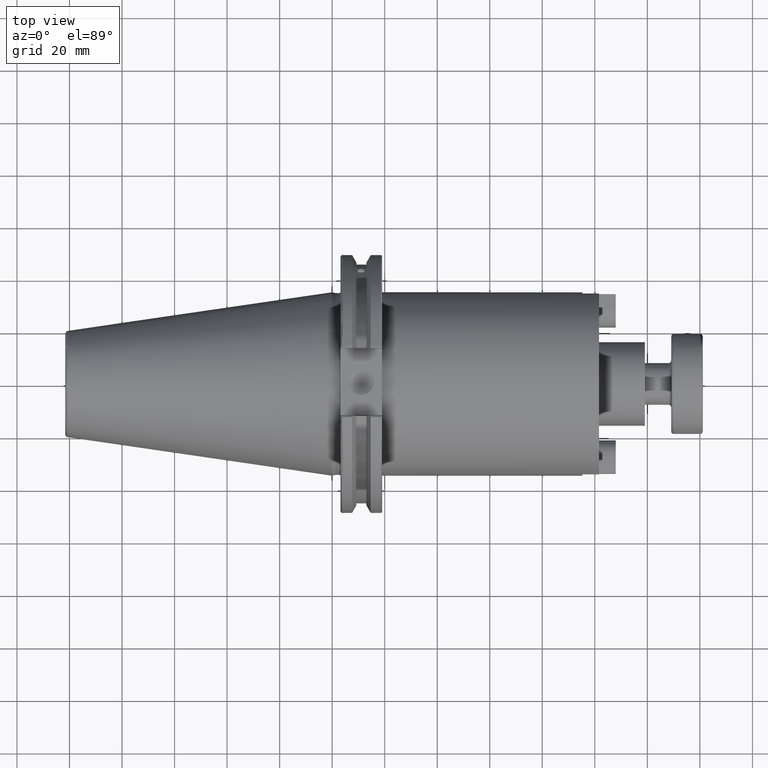
[diagram: clean part render]
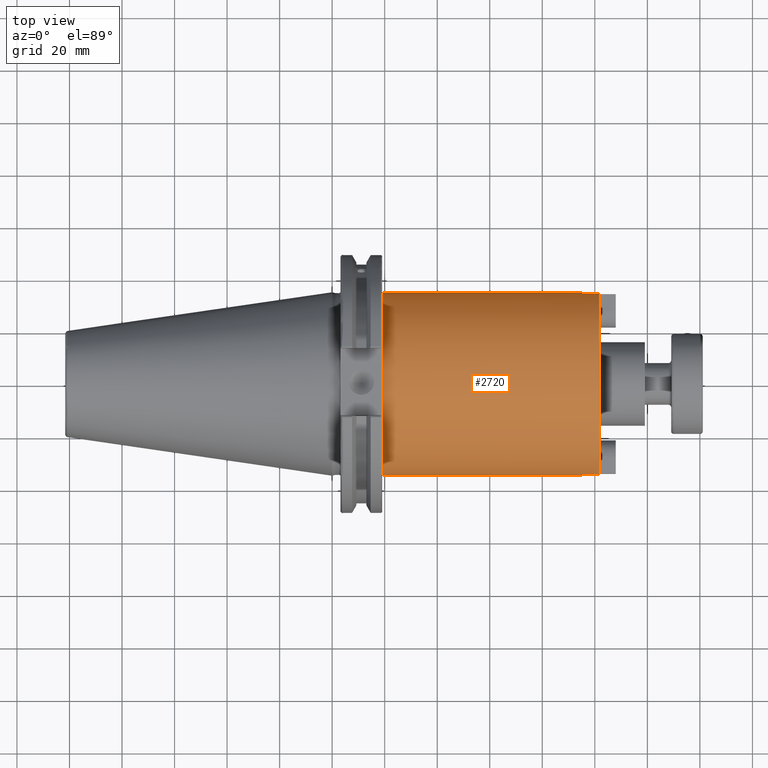
[diagram: same view with one face highlighted and labeled with its STEP entity id]
A machine part, top view. The second image highlights one B-rep face of the part: STEP entity #2720.
In plain terms, the highlighted cylindrical surface (bore or boss wall) has radius 34.925 mm, axis along (1, 0, 0).
Its self-contained STEP definition (entity closure, byte-faithful):
#519=CYLINDRICAL_SURFACE('',#3022,34.925);
#601=CIRCLE('',#3012,34.925);
#603=CIRCLE('',#3014,34.925);
#607=CIRCLE('',#3023,34.925);
#608=CIRCLE('',#3024,34.925);
#609=CIRCLE('',#3025,34.925);
#610=CIRCLE('',#3026,34.925);
#738=FACE_OUTER_BOUND('',#878,.T.);
#878=EDGE_LOOP('',(#1974,#1975,#1976,#1977,#1978,#1979,#1980,#1981,#1982,
#1983,#1984,#1985));
#1039=LINE('',#4157,#1205);
#1047=LINE('',#4186,#1213);
#1049=LINE('',#4190,#1215);
#1050=LINE('',#4195,#1216);
#1051=LINE('',#4199,#1217);
#1205=VECTOR('',#3340,10.);
#1213=VECTOR('',#3370,10.);
#1215=VECTOR('',#3374,34.925);
#1216=VECTOR('',#3379,10.);
#1217=VECTOR('',#3382,10.);
#1371=VERTEX_POINT('',#4155);
#1372=VERTEX_POINT('',#4156);
#1375=VERTEX_POINT('',#4164);
#1377=VERTEX_POINT('',#4168);
#1382=VERTEX_POINT('',#4185);
#1383=VERTEX_POINT('',#4189);
#1384=VERTEX_POINT('',#4192);
#1385=VERTEX_POINT('',#4194);
#1386=VERTEX_POINT('',#4196);
#1387=VERTEX_POINT('',#4198);
#1603=EDGE_CURVE('',#1371,#1372,#1039,.T.);
#1607=EDGE_CURVE('',#1372,#1375,#601,.T.);
#1610=EDGE_CURVE('',#1375,#1377,#603,.T.);
#1617=EDGE_CURVE('',#1377,#1382,#1047,.T.);
#1619=EDGE_CURVE('',#1375,#1383,#1049,.T.);
#1620=EDGE_CURVE('',#1383,#1383,#607,.T.);
#1621=EDGE_CURVE('',#1384,#1382,#608,.T.);
#1622=EDGE_CURVE('',#1384,#1385,#1050,.T.);
#1623=EDGE_CURVE('',#1385,#1386,#609,.T.);
#1624=EDGE_CURVE('',#1386,#1387,#1051,.T.);
#1625=EDGE_CURVE('',#1371,#1387,#610,.T.);
#1974=ORIENTED_EDGE('',*,*,#1603,.T.);
#1975=ORIENTED_EDGE('',*,*,#1607,.T.);
#1976=ORIENTED_EDGE('',*,*,#1619,.T.);
#1977=ORIENTED_EDGE('',*,*,#1620,.F.);
#1978=ORIENTED_EDGE('',*,*,#1619,.F.);
#1979=ORIENTED_EDGE('',*,*,#1610,.T.);
#1980=ORIENTED_EDGE('',*,*,#1617,.T.);
#1981=ORIENTED_EDGE('',*,*,#1621,.F.);
#1982=ORIENTED_EDGE('',*,*,#1622,.T.);
#1983=ORIENTED_EDGE('',*,*,#1623,.T.);
#1984=ORIENTED_EDGE('',*,*,#1624,.T.);
#1985=ORIENTED_EDGE('',*,*,#1625,.F.);
#2720=ADVANCED_FACE('',(#738),#519,.T.);
#3012=AXIS2_PLACEMENT_3D('',#4165,#3346,#3347);
#3014=AXIS2_PLACEMENT_3D('',#4170,#3351,#3352);
#3022=AXIS2_PLACEMENT_3D('',#4188,#3372,#3373);
#3023=AXIS2_PLACEMENT_3D('',#4191,#3375,#3376);
#3024=AXIS2_PLACEMENT_3D('',#4193,#3377,#3378);
#3025=AXIS2_PLACEMENT_3D('',#4197,#3380,#3381);
#3026=AXIS2_PLACEMENT_3D('',#4200,#3383,#3384);
#3340=DIRECTION('',(-1.,0.,0.));
#3346=DIRECTION('center_axis',(-1.,0.,0.));
#3347=DIRECTION('ref_axis',(0.,1.,0.));
#3351=DIRECTION('center_axis',(-1.,0.,0.));
#3352=DIRECTION('ref_axis',(0.,1.,0.));
#3370=DIRECTION('',(1.,0.,0.));
#3372=DIRECTION('center_axis',(1.,0.,0.));
#3373=DIRECTION('ref_axis',(0.,1.,0.));
#3374=DIRECTION('',(-1.,0.,0.));
#3375=DIRECTION('center_axis',(-1.,0.,0.));
#3376=DIRECTION('ref_axis',(0.,1.,0.));
#3377=DIRECTION('center_axis',(1.,0.,0.));
#3378=DIRECTION('ref_axis',(0.,0.,-1.));
#3379=DIRECTION('',(-1.,0.,0.));
#3380=DIRECTION('center_axis',(-1.,0.,0.));
#3381=DIRECTION('ref_axis',(0.,1.,0.));
#3382=DIRECTION('',(1.,0.,0.));
#3383=DIRECTION('center_axis',(1.,0.,0.));
#3384=DIRECTION('ref_axis',(0.,0.,-1.));
#4155=CARTESIAN_POINT('',(101.6,-34.3428758987945,-6.35));
#4156=CARTESIAN_POINT('',(95.25,-34.3428758987945,-6.35));
#4157=CARTESIAN_POINT('',(60.325,-34.3428758987945,-6.35));
#4164=CARTESIAN_POINT('',(95.25,-34.925,-4.27707894602213E-15));
#4165=CARTESIAN_POINT('Origin',(95.25,0.,0.));
#4168=CARTESIAN_POINT('',(95.25,-34.3428758987945,6.35000000000001));
#4170=CARTESIAN_POINT('Origin',(95.25,0.,0.));
#4185=CARTESIAN_POINT('',(101.6,-34.3428758987945,6.35000000000001));
#4186=CARTESIAN_POINT('',(60.325,-34.3428758987945,6.35000000000001));
#4188=CARTESIAN_POINT('Origin',(60.325,0.,0.));
#4189=CARTESIAN_POINT('',(19.05,-34.925,-4.27707894602213E-15));
#4190=CARTESIAN_POINT('',(60.325,-34.925,-4.27707894602213E-15));
#4191=CARTESIAN_POINT('Origin',(19.05,0.,0.));
#4192=CARTESIAN_POINT('',(101.6,34.3428758987945,6.35));
#4193=CARTESIAN_POINT('Origin',(101.6,0.,0.));
#4194=CARTESIAN_POINT('',(95.25,34.3428758987945,6.35));
#4195=CARTESIAN_POINT('',(60.325,34.3428758987945,6.35));
#4196=CARTESIAN_POINT('',(95.25,34.3428758987945,-6.35));
#4197=CARTESIAN_POINT('Origin',(95.25,0.,0.));
#4198=CARTESIAN_POINT('',(101.6,34.3428758987945,-6.35));
#4199=CARTESIAN_POINT('',(60.325,34.3428758987945,-6.35));
#4200=CARTESIAN_POINT('Origin',(101.6,0.,0.));